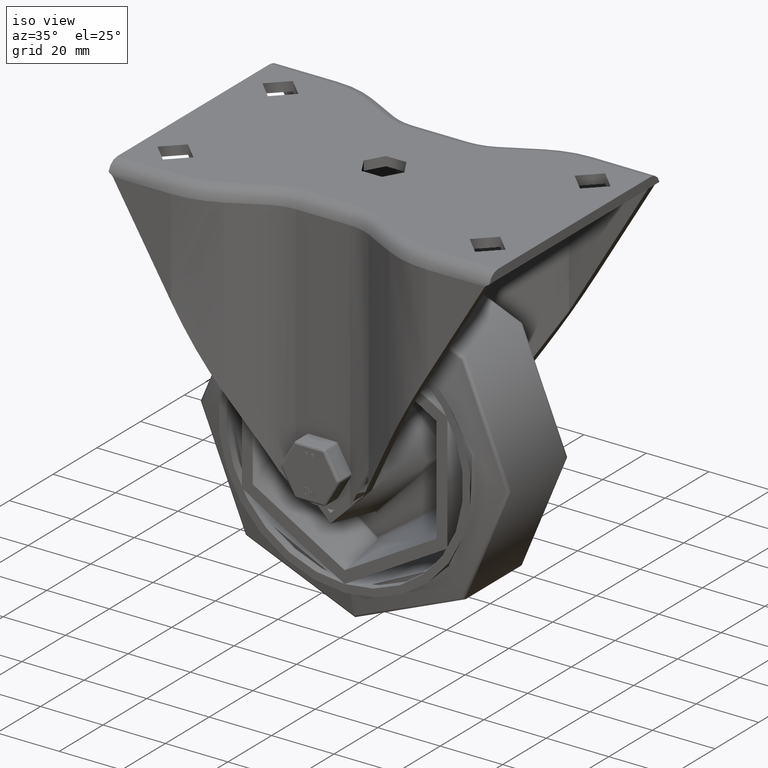
[diagram: clean part render]
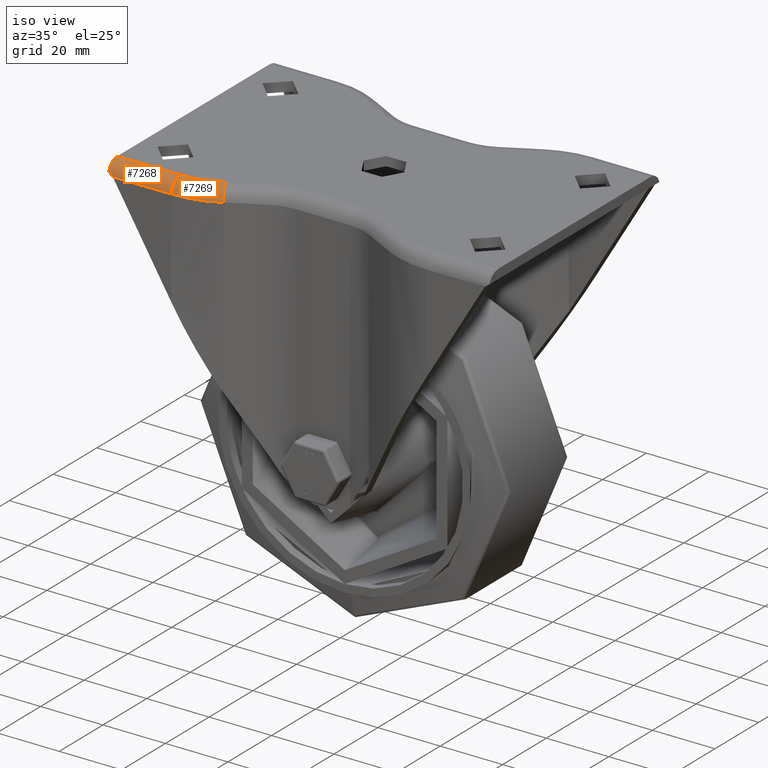
[diagram: same view with one multi-face feature highlighted, each face labeled with its STEP entity id]
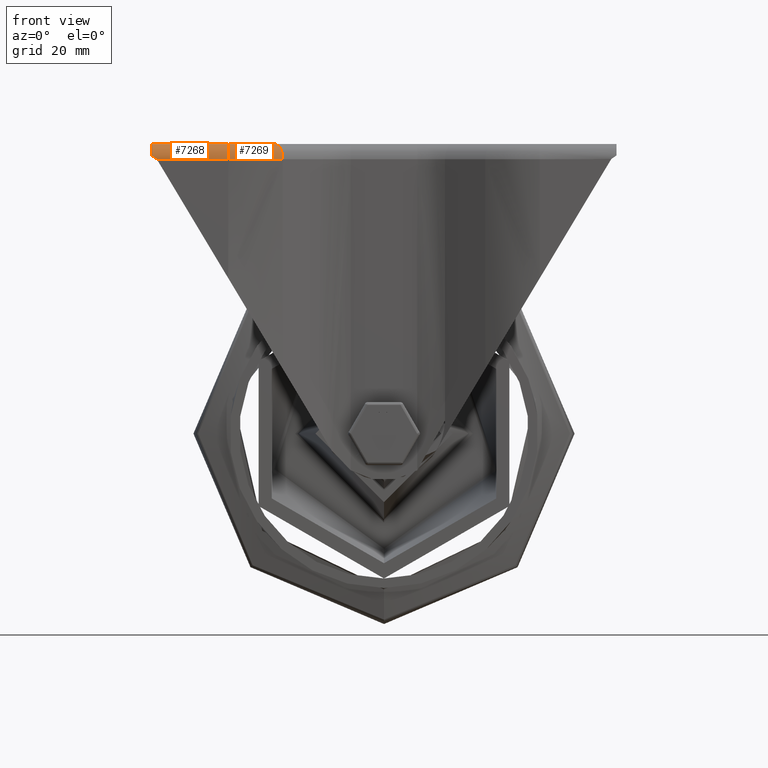
[diagram: same view with one multi-face feature highlighted, each face labeled with its STEP entity id]
A machine part, iso view. The highlighted faces form ONE feature: a constant-radius fillet chain: 2 tangent blend faces with common blend radius 4 mm. The faces share edges in the B-rep.
A second angle (front view) of the same feature is appended — it is thin or edge-on in the first view.
Their STEP definitions:
[1] entity #7268 (Cylinder):
#240=B_SPLINE_CURVE_WITH_KNOTS('',3,(#10778,#10779,#10780,#10781,#10782,
#10783,#10784,#10785),.UNSPECIFIED.,.F.,.F.,(4,2,2,4),(0.0341354256765779,
0.0762411859053673,0.152482371810735,0.198844205617732),.UNSPECIFIED.);
#509=ELLIPSE('',#7863,4.66524308155358,4.);
#540=CYLINDRICAL_SURFACE('',#7883,4.);
#792=CIRCLE('',#7884,4.);
#793=CIRCLE('',#7885,4.);
#1080=FACE_OUTER_BOUND('',#1522,.T.);
#1522=EDGE_LOOP('',(#5154,#5155,#5156,#5157,#5158,#5159));
#2011=LINE('',#10838,#2562);
#2019=LINE('',#10869,#2570);
#2562=VECTOR('',#8779,10.);
#2570=VECTOR('',#8809,10.);
#3115=VERTEX_POINT('',#10776);
#3116=VERTEX_POINT('',#10777);
#3128=VERTEX_POINT('',#10835);
#3129=VERTEX_POINT('',#10837);
#3137=VERTEX_POINT('',#10858);
#3141=VERTEX_POINT('',#10868);
#3848=EDGE_CURVE('',#3115,#3116,#240,.T.);
#3869=EDGE_CURVE('',#3129,#3128,#2011,.T.);
#3880=EDGE_CURVE('',#3116,#3137,#509,.T.);
#3885=EDGE_CURVE('',#3137,#3141,#2019,.T.);
#3908=EDGE_CURVE('',#3129,#3141,#792,.T.);
#3909=EDGE_CURVE('',#3128,#3115,#793,.T.);
#5154=ORIENTED_EDGE('',*,*,#3880,.T.);
#5155=ORIENTED_EDGE('',*,*,#3885,.T.);
#5156=ORIENTED_EDGE('',*,*,#3908,.F.);
#5157=ORIENTED_EDGE('',*,*,#3869,.T.);
#5158=ORIENTED_EDGE('',*,*,#3909,.T.);
#5159=ORIENTED_EDGE('',*,*,#3848,.T.);
#7268=ADVANCED_FACE('',(#1080),#540,.T.);
#7863=AXIS2_PLACEMENT_3D('',#10859,#8799,#8800);
#7883=AXIS2_PLACEMENT_3D('',#10920,#8857,#8858);
#7884=AXIS2_PLACEMENT_3D('',#10921,#8859,#8860);
#7885=AXIS2_PLACEMENT_3D('',#10922,#8861,#8862);
#8779=DIRECTION('',(-1.,0.,0.));
#8799=DIRECTION('center_axis',(0.857404411747813,0.,0.514643249946395));
#8800=DIRECTION('ref_axis',(-0.514643249946395,1.18988764917201E-16,0.857404411747813));
#8809=DIRECTION('',(1.,0.,0.));
#8857=DIRECTION('center_axis',(-1.,0.,0.));
#8858=DIRECTION('ref_axis',(0.,-0.707106781186549,0.707106781186546));
#8859=DIRECTION('center_axis',(1.,0.,0.));
#8860=DIRECTION('ref_axis',(0.,0.,1.));
#8861=DIRECTION('center_axis',(1.,0.,0.));
#8862=DIRECTION('ref_axis',(0.,-0.707106781186549,0.707106781186546));
#10776=CARTESIAN_POINT('',(420.043513280452,-89.0680926161398,-3.));
#10777=CARTESIAN_POINT('',(421.410737434667,-89.1946634076152,-3.94027814684541));
#10778=CARTESIAN_POINT('Ctrl Pts',(420.043513280452,-89.0680926161398,-2.99999999999987));
#10779=CARTESIAN_POINT('Ctrl Pts',(420.187505253598,-89.0746538123638,-3.02541140370673));
#10780=CARTESIAN_POINT('Ctrl Pts',(420.330981420974,-89.0852854553521,-3.06727931580474));
#10781=CARTESIAN_POINT('Ctrl Pts',(420.715421961526,-89.1213595651,-3.2280985166632));
#10782=CARTESIAN_POINT('Ctrl Pts',(420.940885511267,-89.1515382163785,-3.38391724826542));
#10783=CARTESIAN_POINT('Ctrl Pts',(421.227188611327,-89.1833120175946,-3.67380969735084));
#10784=CARTESIAN_POINT('Ctrl Pts',(421.327170631171,-89.1925845012987,-3.80105443021952));
#10785=CARTESIAN_POINT('Ctrl Pts',(421.410737434667,-89.1946634076152,-3.94027814684511));
#10835=CARTESIAN_POINT('',(420.043513280452,-85.1951092699324,0.));
#10837=CARTESIAN_POINT('',(440.166953390703,-85.1951092699324,0.));
#10838=CARTESIAN_POINT('',(440.166953390703,-85.1951092699324,0.));
#10858=CARTESIAN_POINT('',(421.446584519402,-89.1951092699324,-4.));
#10859=CARTESIAN_POINT('Origin',(421.446584519402,-85.1951092699324,-4.));
#10868=CARTESIAN_POINT('',(440.166953390703,-89.1951092699324,-4.));
#10869=CARTESIAN_POINT('',(440.166953390703,-89.1951092699324,-4.));
#10920=CARTESIAN_POINT('Origin',(440.166953390703,-85.1951092699324,-4.));
#10921=CARTESIAN_POINT('Origin',(440.166953390703,-85.1951092699324,-4.));
#10922=CARTESIAN_POINT('Origin',(420.043513280452,-85.1951092699324,-4.));
[2] entity #7269 (Torus):
#221=TOROIDAL_SURFACE('',#7886,26.5,4.);
#783=CIRCLE('',#7856,26.5);
#788=CIRCLE('',#7868,30.5);
#792=CIRCLE('',#7884,4.);
#794=CIRCLE('',#7887,4.);
#1081=FACE_OUTER_BOUND('',#1523,.T.);
#1523=EDGE_LOOP('',(#5160,#5161,#5162,#5163));
#3129=VERTEX_POINT('',#10837);
#3130=VERTEX_POINT('',#10839);
#3141=VERTEX_POINT('',#10868);
#3142=VERTEX_POINT('',#10872);
#3870=EDGE_CURVE('',#3130,#3129,#783,.T.);
#3887=EDGE_CURVE('',#3141,#3142,#788,.T.);
#3908=EDGE_CURVE('',#3129,#3141,#792,.T.);
#3910=EDGE_CURVE('',#3130,#3142,#794,.T.);
#5160=ORIENTED_EDGE('',*,*,#3908,.T.);
#5161=ORIENTED_EDGE('',*,*,#3887,.T.);
#5162=ORIENTED_EDGE('',*,*,#3910,.F.);
#5163=ORIENTED_EDGE('',*,*,#3870,.T.);
#7269=ADVANCED_FACE('',(#1081),#221,.T.);
#7856=AXIS2_PLACEMENT_3D('',#10840,#8780,#8781);
#7868=AXIS2_PLACEMENT_3D('',#10873,#8813,#8814);
#7884=AXIS2_PLACEMENT_3D('',#10921,#8859,#8860);
#7886=AXIS2_PLACEMENT_3D('',#10923,#8863,#8864);
#7887=AXIS2_PLACEMENT_3D('',#10924,#8865,#8866);
#8780=DIRECTION('center_axis',(0.,0.,-1.));
#8781=DIRECTION('ref_axis',(0.241921895599667,-0.970295726275997,0.));
#8813=DIRECTION('center_axis',(0.,0.,1.));
#8814=DIRECTION('ref_axis',(0.241921895599667,-0.970295726275997,0.));
#8859=DIRECTION('center_axis',(1.,0.,0.));
#8860=DIRECTION('ref_axis',(0.,0.,1.));
#8863=DIRECTION('center_axis',(0.,0.,-1.));
#8864=DIRECTION('ref_axis',(-1.,0.,0.));
#8865=DIRECTION('center_axis',(0.882947592858925,0.469471562785894,0.));
#8866=DIRECTION('ref_axis',(0.,0.,1.));
#10837=CARTESIAN_POINT('',(440.166953390703,-85.1951092699324,0.));
#10839=CARTESIAN_POINT('',(452.607949804529,-82.0932204806939,0.));
#10840=CARTESIAN_POINT('Origin',(440.166953390703,-58.6951092699324,0.));
#10868=CARTESIAN_POINT('',(440.166953390703,-89.1951092699324,-4.));
#10872=CARTESIAN_POINT('',(454.485836055673,-85.6250108521296,-4.));
#10873=CARTESIAN_POINT('Origin',(440.166953390703,-58.6951092699324,-4.));
#10921=CARTESIAN_POINT('Origin',(440.166953390703,-85.1951092699324,-4.));
#10923=CARTESIAN_POINT('Origin',(440.166953390703,-58.6951092699324,-4.));
#10924=CARTESIAN_POINT('Origin',(452.607949804529,-82.0932204806939,-4.));